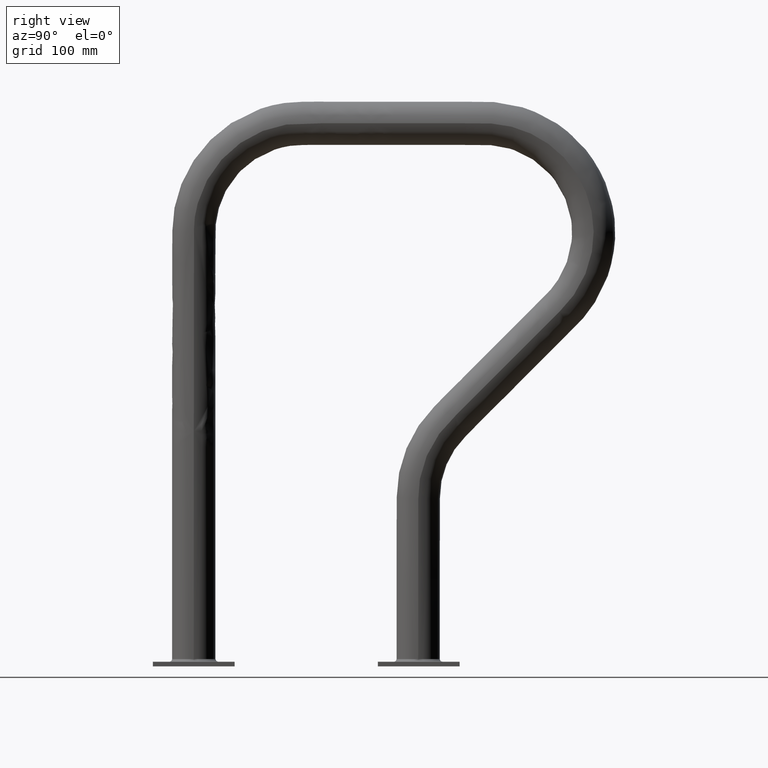
[diagram: clean part render]
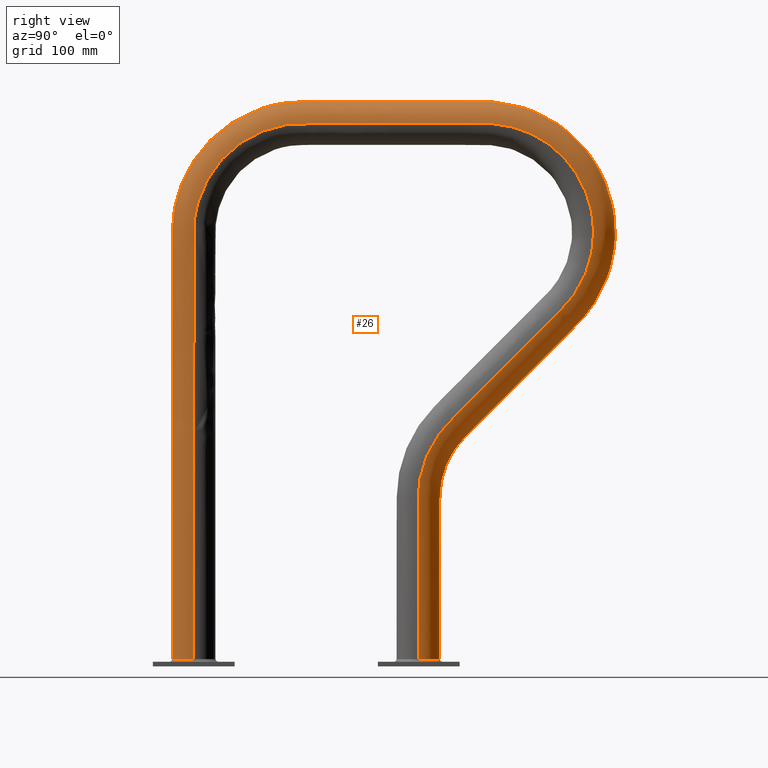
[diagram: same view with one face highlighted and labeled with its STEP entity id]
A machine part, right view. The second image highlights one B-rep face of the part: STEP entity #26.
In plain terms, the highlighted face is a freeform B-spline surface patch.
Its self-contained STEP definition (entity closure, byte-faithful):
#26=ADVANCED_FACE($,(#62),#346,.T.);
#62=FACE_OUTER_BOUND($,#98,.T.);
#98=EDGE_LOOP($,(#180,#181,#182,#183,#184));
#180=ORIENTED_EDGE($,*,*,#283,.T.);
#181=ORIENTED_EDGE($,*,*,#288,.F.);
#182=ORIENTED_EDGE($,*,*,#265,.F.);
#183=ORIENTED_EDGE($,*,*,#269,.F.);
#184=ORIENTED_EDGE($,*,*,#268,.T.);
#265=EDGE_CURVE($,#321,#335,#373,.T.);
#268=EDGE_CURVE($,#323,#332,#376,.T.);
#269=EDGE_CURVE($,#323,#321,#377,.T.);
#283=EDGE_CURVE($,#332,#333,#387,.T.);
#288=EDGE_CURVE($,#335,#333,#392,.T.);
#321=VERTEX_POINT($,#1702);
#323=VERTEX_POINT($,#1704);
#332=VERTEX_POINT($,#1713);
#333=VERTEX_POINT($,#1714);
#335=VERTEX_POINT($,#1716);
#346=(
BOUNDED_SURFACE()
B_SPLINE_SURFACE(3,2,((#911,#912,#913,#914,#915),(#916,#917,#918,#919,#920),
(#921,#922,#923,#924,#925),(#926,#927,#928,#929,#930),(#931,#932,#933,#934,
#935),(#936,#937,#938,#939,#940),(#941,#942,#943,#944,#945),(#946,#947,#948,
#949,#950),(#951,#952,#953,#954,#955),(#956,#957,#958,#959,#960),(#961,#962,
#963,#964,#965),(#966,#967,#968,#969,#970),(#971,#972,#973,#974,#975),(#976,
#977,#978,#979,#980),(#981,#982,#983,#984,#985),(#986,#987,#988,#989,#990),
(#991,#992,#993,#994,#995),(#996,#997,#998,#999,#1000),(#1001,#1002,#1003,
#1004,#1005),(#1006,#1007,#1008,#1009,#1010),(#1011,#1012,#1013,#1014,#1015),
(#1016,#1017,#1018,#1019,#1020),(#1021,#1022,#1023,#1024,#1025),(#1026,#1027,
#1028,#1029,#1030),(#1031,#1032,#1033,#1034,#1035),(#1036,#1037,#1038,#1039,
#1040),(#1041,#1042,#1043,#1044,#1045),(#1046,#1047,#1048,#1049,#1050),(#1051,
#1052,#1053,#1054,#1055),(#1056,#1057,#1058,#1059,#1060),(#1061,#1062,#1063,
#1064,#1065),(#1066,#1067,#1068,#1069,#1070),(#1071,#1072,#1073,#1074,#1075),
(#1076,#1077,#1078,#1079,#1080),(#1081,#1082,#1083,#1084,#1085),(#1086,#1087,
#1088,#1089,#1090),(#1091,#1092,#1093,#1094,#1095),(#1096,#1097,#1098,#1099,
#1100),(#1101,#1102,#1103,#1104,#1105),(#1106,#1107,#1108,#1109,#1110),(#1111,
#1112,#1113,#1114,#1115),(#1116,#1117,#1118,#1119,#1120),(#1121,#1122,#1123,
#1124,#1125),(#1126,#1127,#1128,#1129,#1130),(#1131,#1132,#1133,#1134,#1135),
(#1136,#1137,#1138,#1139,#1140),(#1141,#1142,#1143,#1144,#1145),(#1146,#1147,
#1148,#1149,#1150),(#1151,#1152,#1153,#1154,#1155),(#1156,#1157,#1158,#1159,
#1160),(#1161,#1162,#1163,#1164,#1165),(#1166,#1167,#1168,#1169,#1170),(#1171,
#1172,#1173,#1174,#1175),(#1176,#1177,#1178,#1179,#1180),(#1181,#1182,#1183,
#1184,#1185),(#1186,#1187,#1188,#1189,#1190),(#1191,#1192,#1193,#1194,#1195),
(#1196,#1197,#1198,#1199,#1200),(#1201,#1202,#1203,#1204,#1205),(#1206,#1207,
#1208,#1209,#1210),(#1211,#1212,#1213,#1214,#1215)),.UNSPECIFIED.,.F.,.F.,
.F.)
B_SPLINE_SURFACE_WITH_KNOTS((4,1,1,1,1,1,1,1,1,1,1,1,1,1,1,1,1,1,1,1,1,1,
1,1,1,1,1,1,1,1,1,1,1,1,1,1,1,1,1,1,1,1,1,1,1,1,1,1,1,1,1,1,1,1,1,1,1,1,
4),(3,2,3),(0.149996796353714,4.5,6.75,9.,9.5890476981201,10.1780953962402,
10.7671430943603,11.3561907924804,11.9452384906005,12.5342861887206,13.1233338868406,
13.7123815849607,15.8831062160747,18.0538308471886,20.2245554783025,21.3099177938595,
22.3952801094164,22.8370650137872,23.278849918158,23.7206348225287,24.1624197268995,
25.045989535641,25.9295593443826,26.8131291531241,27.6966989618656,29.4638385793487,
31.2309781968317,32.9981178143148,33.8816876230563,34.7652574317979,35.6488272405394,
36.0906121449101,36.5323970492809,37.7823970492809,39.0323970492809,41.5323970492809,
42.7823970492809,44.0323970492809,45.2823970492809,46.5323970492809,47.0978323011465,
47.3805499270793,47.6632675530121,47.9459851789449,48.2287028048777,48.5114204308105,
48.7941380567433,50.0194471609519,51.2447562651606,52.4700653693693,53.0827199214736,
53.695374473578,54.2608097254436,54.8262449773091,55.3916802291747,55.9571154810403,
61.8633654810403,67.7696154810403,79.5821154810403),(-3.73849525777185,-1.86924762888593,
0.),.UNSPECIFIED.)
GEOMETRIC_REPRESENTATION_ITEM()
RATIONAL_B_SPLINE_SURFACE(((1.,0.707106781186547,1.,0.707106781186547,1.),
(1.,0.707106781186547,1.,0.707106781186547,1.),(1.,0.707106781186547,1.,
0.707106781186547,1.),(1.,0.707106781186548,1.,0.707106781186548,1.),(1.,
0.707106781186548,1.,0.707106781186548,1.),(1.,0.707106781186547,1.,0.707106781186547,
1.),(1.,0.707106781186548,1.,0.707106781186548,1.),(1.,0.707106781186547,
1.,0.707106781186547,1.),(1.,0.707106781186548,1.,0.707106781186548,1.),
(1.,0.707106781186547,1.,0.707106781186547,1.),(1.,0.707106781186548,1.,
0.707106781186548,1.),(1.,0.707106781186548,1.,0.707106781186548,1.),(1.,
0.707106781186547,1.,0.707106781186547,1.),(1.,0.707106781186548,1.,0.707106781186548,
1.),(1.,0.707106781186547,1.,0.707106781186547,1.),(1.,0.707106781186548,
1.,0.707106781186548,1.),(1.,0.707106781186547,1.,0.707106781186547,1.),
(1.,0.707106781186548,1.,0.707106781186548,1.),(1.,0.707106781186547,1.,
0.707106781186547,1.),(1.,0.707106781186548,1.,0.707106781186548,1.),(1.,
0.707106781186547,1.,0.707106781186547,1.),(1.,0.707106781186547,1.,0.707106781186547,
1.),(1.,0.707106781186548,1.,0.707106781186548,1.),(1.,0.707106781186548,
1.,0.707106781186548,1.),(1.,0.707106781186547,1.,0.707106781186547,1.),
(1.,0.707106781186547,1.,0.707106781186547,1.),(1.,0.707106781186548,1.,
0.707106781186548,1.),(1.,0.707106781186547,1.,0.707106781186547,1.),(1.,
0.707106781186547,1.,0.707106781186547,1.),(1.,0.707106781186547,1.,0.707106781186547,
1.),(1.,0.707106781186548,1.,0.707106781186548,1.),(1.,0.707106781186548,
1.,0.707106781186548,1.),(1.,0.707106781186548,1.,0.707106781186548,1.),
(1.,0.707106781186547,1.,0.707106781186547,1.),(1.,0.707106781186547,1.,
0.707106781186547,1.),(1.,0.707106781186548,1.,0.707106781186548,1.),(1.,
0.707106781186547,1.,0.707106781186547,1.),(1.,0.707106781186547,1.,0.707106781186547,
1.),(1.,0.707106781186548,1.,0.707106781186548,1.),(1.,0.707106781186547,
1.,0.707106781186547,1.),(1.,0.707106781186548,1.,0.707106781186548,1.),
(1.,0.707106781186548,1.,0.707106781186548,1.),(1.,0.707106781186548,1.,
0.707106781186548,1.),(1.,0.707106781186548,1.,0.707106781186548,1.),(1.,
0.707106781186548,1.,0.707106781186548,1.),(1.,0.707106781186548,1.,0.707106781186548,
1.),(1.,0.707106781186547,1.,0.707106781186547,1.),(1.,0.707106781186548,
1.,0.707106781186548,1.),(1.,0.707106781186548,1.,0.707106781186548,1.),
(1.,0.707106781186548,1.,0.707106781186548,1.),(0.999999999999999,0.707106781186547,
0.999999999999999,0.707106781186547,0.999999999999999),(1.,0.707106781186548,
1.,0.707106781186548,1.),(1.,0.707106781186547,1.,0.707106781186547,1.),
(1.,0.707106781186547,1.,0.707106781186547,1.),(1.,0.707106781186548,1.,
0.707106781186548,1.),(1.,0.707106781186548,1.,0.707106781186548,1.),(1.,
0.707106781186547,1.,0.707106781186547,1.),(1.,0.707106781186548,1.,0.707106781186548,
1.),(1.,0.707106781186547,1.,0.707106781186547,1.),(1.,0.707106781186548,
1.,0.707106781186548,1.),(1.,0.707106781186547,1.,0.707106781186547,1.)))
REPRESENTATION_ITEM($)
SURFACE()
);
#373=(
BOUNDED_CURVE()
B_SPLINE_CURVE(3,(#612,#613,#614,#615,#616,#617,#618),.UNSPECIFIED.,.F.,
.F.)
B_SPLINE_CURVE_WITH_KNOTS((4,1,1,1,4),(-9.68063434933509E-06,0.983040870456831,
2.01477237132182,3.08782355078826,4.16456724176145),.UNSPECIFIED.)
CURVE()
GEOMETRIC_REPRESENTATION_ITEM()
RATIONAL_B_SPLINE_CURVE((1.,1.,1.,1.,1.,1.,1.))
REPRESENTATION_ITEM($)
);
#376=(
BOUNDED_CURVE()
B_SPLINE_CURVE(3,(#629,#630,#631,#632,#633,#634,#635),.UNSPECIFIED.,.F.,
.F.)
B_SPLINE_CURVE_WITH_KNOTS((4,1,1,1,4),(1.97151300374481E-05,1.0183585563259,
2.10088135256661,3.11924612173618,4.20192811010861),.UNSPECIFIED.)
CURVE()
GEOMETRIC_REPRESENTATION_ITEM()
RATIONAL_B_SPLINE_CURVE((1.,1.,1.,1.,1.,1.,1.))
REPRESENTATION_ITEM($)
);
#377=(
BOUNDED_CURVE()
B_SPLINE_CURVE(3,(#636,#637,#638,#639,#640,#641,#642,#643,#644,#645,#646,
#647,#648,#649,#650,#651,#652,#653,#654,#655,#656,#657,#658,#659,#660,#661,
#662,#663,#664,#665,#666,#667,#668,#669,#670,#671,#672,#673,#674,#675,#676,
#677,#678,#679,#680,#681,#682,#683,#684,#685,#686,#687,#688,#689,#690,#691,
#692,#693,#694,#695,#696),.UNSPECIFIED.,.F.,.F.)
B_SPLINE_CURVE_WITH_KNOTS((4,1,1,1,1,1,1,1,1,1,1,1,1,1,1,1,1,1,1,1,1,1,1,
1,1,1,1,1,1,1,1,1,1,1,1,1,1,1,1,1,1,1,1,1,1,1,1,1,1,1,1,1,1,1,1,1,1,1,4),
(0.14999768131915,4.5,6.75,9.,9.5890476981201,10.1780953962402,10.7671430943603,
11.3561907924804,11.9452384906005,12.5342861887206,13.1233338868406,13.7123815849607,
15.8831062160747,18.0538308471886,20.2245554783025,21.3099177938595,22.3952801094164,
22.8370650137872,23.278849918158,23.7206348225287,24.1624197268995,25.045989535641,
25.9295593443826,26.8131291531241,27.6966989618656,29.4638385793487,31.2309781968317,
32.9981178143148,33.8816876230563,34.7652574317979,35.6488272405394,36.0906121449101,
36.5323970492809,37.7823970492809,39.0323970492809,41.5323970492809,42.7823970492809,
44.0323970492809,45.2823970492809,46.5323970492809,47.0978323011465,47.3805499270793,
47.6632675530121,47.9459851789449,48.2287028048777,48.5114204308105,48.7941380567433,
50.0194471609519,51.2447562651606,52.4700653693693,53.0827199214736,53.695374473578,
54.2608097254436,54.8262449773091,55.3916802291747,55.9571154810403,61.8633654810403,
67.7696154810403,79.4321148967266),.UNSPECIFIED.)
CURVE()
GEOMETRIC_REPRESENTATION_ITEM()
RATIONAL_B_SPLINE_CURVE((1.,1.,1.,1.,1.,1.,1.,1.,1.,1.,1.,1.,1.,1.,1.,1.,
1.,1.,1.,1.,1.,1.,1.,1.,1.,1.,1.,1.,1.,1.,1.,1.,1.,1.,1.,1.,1.,1.,1.,1.,
1.,1.,1.,1.,1.,1.,1.,1.,1.,1.,0.999999999999999,1.,1.,1.,1.,1.,1.,1.,1.,
1.,1.))
REPRESENTATION_ITEM($)
);
#387=(
BOUNDED_CURVE()
B_SPLINE_CURVE(3,(#748,#749,#750,#751,#752,#753,#754,#755,#756,#757,#758,
#759,#760,#761,#762,#763,#764,#765,#766,#767,#768,#769,#770,#771,#772,#773,
#774,#775,#776,#777,#778,#779,#780,#781,#782,#783,#784,#785,#786,#787,#788,
#789,#790,#791,#792,#793,#794,#795,#796,#797,#798,#799,#800,#801,#802,#803,
#804,#805,#806,#807,#808),.UNSPECIFIED.,.F.,.F.)
B_SPLINE_CURVE_WITH_KNOTS((4,1,1,1,1,1,1,1,1,1,1,1,1,1,1,1,1,1,1,1,1,1,1,
1,1,1,1,1,1,1,1,1,1,1,1,1,1,1,1,1,1,1,1,1,1,1,1,1,1,1,1,1,1,1,1,1,1,1,4),
(0.149996796353714,4.5,6.75,9.,9.5890476981201,10.1780953962402,10.7671430943603,
11.3561907924804,11.9452384906005,12.5342861887206,13.1233338868406,13.7123815849607,
15.8831062160747,18.0538308471886,20.2245554783025,21.3099177938595,22.3952801094164,
22.8370650137872,23.278849918158,23.7206348225287,24.1624197268995,25.045989535641,
25.9295593443826,26.8131291531241,27.6966989618656,29.4638385793487,31.2309781968317,
32.9981178143148,33.8816876230563,34.7652574317979,35.6488272405394,36.0906121449101,
36.5323970492809,37.7823970492809,39.0323970492809,41.5323970492809,42.7823970492809,
44.0323970492809,45.2823970492809,46.5323970492809,47.0978323011465,47.3805499270793,
47.6632675530121,47.9459851789449,48.2287028048777,48.5114204308105,48.7941380567433,
50.0194471609519,51.2447562651606,52.4700653693693,53.0827199214736,53.695374473578,
54.2608097254436,54.8262449773091,55.3916802291747,55.9571154810403,61.8633654810403,
67.7696154810403,79.4321153808704),.UNSPECIFIED.)
CURVE()
GEOMETRIC_REPRESENTATION_ITEM()
RATIONAL_B_SPLINE_CURVE((1.,1.,1.,1.,1.,1.,1.,1.,1.,1.,1.,1.,1.,1.,1.,1.,
1.,1.,1.,1.,1.,1.,1.,1.,1.,1.,1.,1.,1.,1.,1.,1.,1.,1.,1.,1.,1.,1.,1.,1.,
1.,1.,1.,1.,1.,1.,1.,1.,1.,1.,0.999999999999999,1.,1.,1.,1.,1.,1.,1.,1.,
1.,1.))
REPRESENTATION_ITEM($)
);
#392=(
BOUNDED_CURVE()
B_SPLINE_CURVE(3,(#830,#831,#832,#833),.UNSPECIFIED.,.F.,.F.)
B_SPLINE_CURVE_WITH_KNOTS((4,4),(4.16456724176145,4.20973543654917),.UNSPECIFIED.)
CURVE()
GEOMETRIC_REPRESENTATION_ITEM()
RATIONAL_B_SPLINE_CURVE((1.,1.,1.,1.))
REPRESENTATION_ITEM($)
);
#612=CARTESIAN_POINT($,(1.18999997338845,-4.99999031936882,0.399999946810388));
#613=CARTESIAN_POINT($,(1.19104392157763,-5.29079924427484,0.399997732415383));
#614=CARTESIAN_POINT($,(0.961612284910856,-5.8862589332365,0.399992338144895));
#615=CARTESIAN_POINT($,(0.0766388629384522,-6.31760385727528,0.399987551697112));
#616=CARTESIAN_POINT($,(-0.888501210465236,-5.98373725155703,0.399991330575426));
#617=CARTESIAN_POINT($,(-1.17938017084338,-5.35807810489531,0.399997177006046));
#618=CARTESIAN_POINT($,(-1.19010822719629,-5.0400315504556,0.399999653318547));
#629=CARTESIAN_POINT($,(1.18750002661052,7.34554686119319,0.40000005318768));
#630=CARTESIAN_POINT($,(1.18894214174594,7.64620166822011,0.400004339893745));
#631=CARTESIAN_POINT($,(0.93910845713836,8.26825578144411,0.40001141299655));
#632=CARTESIAN_POINT($,(0.0200470343607435,8.66229006668995,0.400014416770548));
#633=CARTESIAN_POINT($,(-0.923043847962278,8.28500863048714,0.400011562769723));
#634=CARTESIAN_POINT($,(-1.18793294093725,7.66535160724076,0.400004575018566));
#635=CARTESIAN_POINT($,(-1.18830401951042,7.34554779398043,0.400000082264978));
#636=CARTESIAN_POINT($,(1.18750002661052,7.34554686119319,0.40000005318768));
#637=CARTESIAN_POINT($,(1.18750054076513,7.34570832758117,1.85001990622462));
#638=CARTESIAN_POINT($,(1.18751261108159,7.34471099487654,4.04988410585989));
#639=CARTESIAN_POINT($,(1.18754924544854,7.34771774543352,7.00003845710319));
#640=CARTESIAN_POINT($,(1.18757781774712,7.3395373368351,8.69626767759837));
#641=CARTESIAN_POINT($,(1.18760003753637,7.36104371918334,9.83902142103311));
#642=CARTESIAN_POINT($,(1.18761211532942,7.45236133314234,10.4223924555415));
#643=CARTESIAN_POINT($,(1.18762480470855,7.59438817219515,10.9945821341949));
#644=CARTESIAN_POINT($,(1.18763809350837,7.79345210585914,11.5497098113778));
#645=CARTESIAN_POINT($,(1.18765196956348,8.04524952786369,12.0830528252714));
#646=CARTESIAN_POINT($,(1.1876664207085,8.34938739198049,12.5880625377117));
#647=CARTESIAN_POINT($,(1.18768143477802,8.69734339464227,13.0650542851024));
#648=CARTESIAN_POINT($,(1.18771093086696,9.47153006225236,13.8697685737013));
#649=CARTESIAN_POINT($,(1.18775787846256,10.6393826834234,15.0257824515045));
#650=CARTESIAN_POINT($,(1.18782659202484,12.1723605289759,16.5631971063832));
#651=CARTESIAN_POINT($,(1.18788893383518,13.4521727059886,17.8412058704929));
#652=CARTESIAN_POINT($,(1.18794155117844,14.4744163431139,18.8656404433521));
#653=CARTESIAN_POINT($,(1.18797425389565,15.0931442698116,19.4784607395818));
#654=CARTESIAN_POINT($,(1.18799941937212,15.5486335311843,19.9513134465603));
#655=CARTESIAN_POINT($,(1.18801655606,15.8232232927506,20.297813390522));
#656=CARTESIAN_POINT($,(1.18803388457132,16.0738437078251,20.6621222206536));
#657=CARTESIAN_POINT($,(1.18805723817472,16.3705592083273,21.1715304340619));
#658=CARTESIAN_POINT($,(1.18808688407635,16.6696774212637,21.8462066871592));
#659=CARTESIAN_POINT($,(1.1881231443362,16.9060424130784,22.7002675496236));
#660=CARTESIAN_POINT($,(1.18816004871597,17.0144295067279,23.5795041281065));
#661=CARTESIAN_POINT($,(1.18821005863828,16.985695551388,24.7606211391669));
#662=CARTESIAN_POINT($,(1.18827397605113,16.6240149809328,26.2044846154386));
#663=CARTESIAN_POINT($,(1.18835259649879,15.7055715811961,27.736816659476));
#664=CARTESIAN_POINT($,(1.18841943944562,14.6026632893214,28.7364685394192));
#665=CARTESIAN_POINT($,(1.18847354511549,13.574540160616,29.3185175345303));
#666=CARTESIAN_POINT($,(1.18851439896612,12.7481338960121,29.6375902624344));
#667=CARTESIAN_POINT($,(1.18854863845854,12.0276528859738,29.7986458772621));
#668=CARTESIAN_POINT($,(1.18857612629364,11.4418360721463,29.8658597803028));
#669=CARTESIAN_POINT($,(1.18860938314892,10.730703637133,29.8782322107936));
#670=CARTESIAN_POINT($,(1.18865539888104,9.74984510423498,29.8738929234498));
#671=CARTESIAN_POINT($,(1.18873385852715,8.08336289204637,29.875374273069));
#672=CARTESIAN_POINT($,(1.18881245928802,6.41670615321504,29.8749116005803));
#673=CARTESIAN_POINT($,(1.18889073615092,4.75005208670264,29.8749227428603));
#674=CARTESIAN_POINT($,(1.18894916559591,3.49999875133177,29.8753946424087));
#675=CARTESIAN_POINT($,(1.18900720058554,2.25000354676509,29.8734986875048));
#676=CARTESIAN_POINT($,(1.18905422377464,1.22826480712053,29.8793123223));
#677=CARTESIAN_POINT($,(1.18908615430312,0.528765083750568,29.8640053564864));
#678=CARTESIAN_POINT($,(1.18910329481787,0.154464340720613,29.8169249146227));
#679=CARTESIAN_POINT($,(1.18911611409676,-0.124640894541615,29.7710378377547));
#680=CARTESIAN_POINT($,(1.18912889592347,-0.401148905886091,29.7113561660349));
#681=CARTESIAN_POINT($,(1.18914163895294,-0.674464339285013,29.6389343948676));
#682=CARTESIAN_POINT($,(1.18915434184016,-0.944118163554715,29.5536402899793));
#683=CARTESIAN_POINT($,(1.18918107443878,-1.5042260039333,29.3470922449522));
#684=CARTESIAN_POINT($,(1.18922151009293,-2.3169886369094,28.9248971817326));
#685=CARTESIAN_POINT($,(1.18927497593431,-3.27222251433781,28.1472496188826));
#686=CARTESIAN_POINT($,(1.18931867783824,-3.92024628919738,27.3512606441674));
#687=CARTESIAN_POINT($,(1.18935307283336,-4.33384926382493,26.6454693547667));
#688=CARTESIAN_POINT($,(1.18937791702343,-4.58179722698739,26.1017703649988));
#689=CARTESIAN_POINT($,(1.18940182278699,-4.77069226280928,25.5511874862511));
#690=CARTESIAN_POINT($,(1.18942480575832,-4.90119292651665,25.0010301728267));
#691=CARTESIAN_POINT($,(1.18944750260886,-4.98686892631041,24.4404617718269));
#692=CARTESIAN_POINT($,(1.18954042883036,-5.00633578118098,22.0947652550622));
#693=CARTESIAN_POINT($,(1.18969103455355,-4.99742463195944,17.968794642721));
#694=CARTESIAN_POINT($,(1.18991594311466,-5.00099659239819,10.1438808614838));
#695=CARTESIAN_POINT($,(1.18999859489637,-4.99975324913284,4.28748468494972));
#696=CARTESIAN_POINT($,(1.18999997338845,-4.99999031936882,0.399999946810388));
#748=CARTESIAN_POINT($,(-1.1875000266102,7.34554686109464,0.399999168210603));
#749=CARTESIAN_POINT($,(-1.1875005407619,7.34570832784863,1.85001931628429));
#750=CARTESIAN_POINT($,(-1.18751261107792,7.34471099457588,4.04988381085606));
#751=CARTESIAN_POINT($,(-1.18754924544854,7.34771774543352,7.00003845710319));
#752=CARTESIAN_POINT($,(-1.18757781774712,7.3395373368351,8.69626767759837));
#753=CARTESIAN_POINT($,(-1.18760003753637,7.36104371918334,9.83902142103312));
#754=CARTESIAN_POINT($,(-1.18761211532942,7.45236133314234,10.4223924555415));
#755=CARTESIAN_POINT($,(-1.18762480470855,7.59438817219515,10.9945821341949));
#756=CARTESIAN_POINT($,(-1.18763809350836,7.79345210585914,11.5497098113778));
#757=CARTESIAN_POINT($,(-1.18765196956349,8.04524952786369,12.0830528252714));
#758=CARTESIAN_POINT($,(-1.1876664207085,8.34938739198049,12.5880625377117));
#759=CARTESIAN_POINT($,(-1.18768143477802,8.69734339464227,13.0650542851024));
#760=CARTESIAN_POINT($,(-1.18771093086696,9.47153006225233,13.8697685737013));
#761=CARTESIAN_POINT($,(-1.18775787846255,10.6393826834234,15.0257824515045));
#762=CARTESIAN_POINT($,(-1.18782659202485,12.1723605289759,16.5631971063832));
#763=CARTESIAN_POINT($,(-1.18788893383518,13.4521727059886,17.8412058704929));
#764=CARTESIAN_POINT($,(-1.18794155117843,14.4744163431139,18.8656404433521));
#765=CARTESIAN_POINT($,(-1.18797425389565,15.0931442698116,19.4784607395818));
#766=CARTESIAN_POINT($,(-1.18799941937212,15.5486335311843,19.9513134465603));
#767=CARTESIAN_POINT($,(-1.18801655605999,15.8232232927506,20.297813390522));
#768=CARTESIAN_POINT($,(-1.18803388457133,16.073843707825,20.6621222206536));
#769=CARTESIAN_POINT($,(-1.18805723817471,16.3705592083273,21.171530434062));
#770=CARTESIAN_POINT($,(-1.18808688407635,16.6696774212636,21.8462066871592));
#771=CARTESIAN_POINT($,(-1.18812314433619,16.9060424130784,22.7002675496236));
#772=CARTESIAN_POINT($,(-1.18816004871597,17.0144295067279,23.5795041281065));
#773=CARTESIAN_POINT($,(-1.18821005863828,16.985695551388,24.7606211391669));
#774=CARTESIAN_POINT($,(-1.18827397605112,16.6240149809328,26.2044846154387));
#775=CARTESIAN_POINT($,(-1.1883525964988,15.7055715811961,27.7368166594761));
#776=CARTESIAN_POINT($,(-1.18841943944562,14.6026632893214,28.7364685394192));
#777=CARTESIAN_POINT($,(-1.18847354511548,13.574540160616,29.3185175345303));
#778=CARTESIAN_POINT($,(-1.18851439896612,12.7481338960121,29.6375902624344));
#779=CARTESIAN_POINT($,(-1.18854863845853,12.0276528859738,29.7986458772621));
#780=CARTESIAN_POINT($,(-1.18857612629363,11.4418360721463,29.8658597803028));
#781=CARTESIAN_POINT($,(-1.18860938314892,10.730703637133,29.8782322107936));
#782=CARTESIAN_POINT($,(-1.18865539888103,9.74984510423498,29.8738929234498));
#783=CARTESIAN_POINT($,(-1.18873385852716,8.08336289204637,29.875374273069));
#784=CARTESIAN_POINT($,(-1.18881245928802,6.41670615321504,29.8749116005803));
#785=CARTESIAN_POINT($,(-1.18889073615092,4.75005208670264,29.8749227428602));
#786=CARTESIAN_POINT($,(-1.18894916559591,3.49999875133176,29.8753946424087));
#787=CARTESIAN_POINT($,(-1.18900720058554,2.25000354676509,29.8734986875048));
#788=CARTESIAN_POINT($,(-1.18905422377462,1.22826480712053,29.8793123223));
#789=CARTESIAN_POINT($,(-1.18908615430312,0.528765083750568,29.8640053564864));
#790=CARTESIAN_POINT($,(-1.18910329481786,0.154464340720613,29.8169249146227));
#791=CARTESIAN_POINT($,(-1.18911611409675,-0.124640894541615,29.7710378377547));
#792=CARTESIAN_POINT($,(-1.18912889592346,-0.401148905886091,29.7113561660349));
#793=CARTESIAN_POINT($,(-1.18914163895294,-0.674464339285013,29.6389343948676));
#794=CARTESIAN_POINT($,(-1.18915434184016,-0.944118163554715,29.5536402899793));
#795=CARTESIAN_POINT($,(-1.18918107443877,-1.5042260039333,29.3470922449522));
#796=CARTESIAN_POINT($,(-1.18922151009293,-2.31698863690941,28.9248971817326));
#797=CARTESIAN_POINT($,(-1.1892749759343,-3.27222251433781,28.1472496188826));
#798=CARTESIAN_POINT($,(-1.18931867783825,-3.92024628919739,27.3512606441674));
#799=CARTESIAN_POINT($,(-1.18935307283336,-4.33384926382494,26.6454693547667));
#800=CARTESIAN_POINT($,(-1.18937791702343,-4.58179722698739,26.1017703649988));
#801=CARTESIAN_POINT($,(-1.18940182278698,-4.77069226280929,25.5511874862511));
#802=CARTESIAN_POINT($,(-1.18942480575831,-4.90119292651666,25.0010301728267));
#803=CARTESIAN_POINT($,(-1.18944750260884,-4.98686892631042,24.4404617718269));
#804=CARTESIAN_POINT($,(-1.18954042883036,-5.00633578118099,22.0947652550622));
#805=CARTESIAN_POINT($,(-1.18969103455355,-4.99742463195945,17.968794642721));
#806=CARTESIAN_POINT($,(-1.18991594311929,-5.00099659247187,10.1438807001044));
#807=CARTESIAN_POINT($,(-1.18999859490092,-4.99975324906432,4.28748436217916));
#808=CARTESIAN_POINT($,(-1.18999997338862,-4.99999031939835,0.399999462668524));
#830=CARTESIAN_POINT($,(-1.19010822719629,-5.0400315504556,0.399999653318547));
#831=CARTESIAN_POINT($,(-1.19055825717381,-5.02668985285112,0.39999975719709));
#832=CARTESIAN_POINT($,(-1.19077079468865,-5.01333992040519,0.399999860280378));
#833=CARTESIAN_POINT($,(-1.19074860920252,-4.99998907537235,0.399999962547309));
#911=CARTESIAN_POINT($,(-1.1875000266102,7.34554686109464,0.399999168210603));
#912=CARTESIAN_POINT($,(-1.1875000266102,8.53304298322622,0.399861564419851));
#913=CARTESIAN_POINT($,(1.81019932072123E-16,8.53304298322622,0.399861564419851));
#914=CARTESIAN_POINT($,(1.1875000266102,8.53304298322622,0.399861564419851));
#915=CARTESIAN_POINT($,(1.18750002661021,7.34554686109464,0.399999168210603));
#916=CARTESIAN_POINT($,(-1.1875005407619,7.34570832784863,1.85001931628429));
#917=CARTESIAN_POINT($,(-1.1875005407619,8.53317298633399,1.84875473328953));
#918=CARTESIAN_POINT($,(1.83096514196645E-15,8.53317298633398,1.84875473328953));
#919=CARTESIAN_POINT($,(1.1875005407619,8.53317298633399,1.84875473328953));
#920=CARTESIAN_POINT($,(1.1875005407619,7.34570832784863,1.85001931628429));
#921=CARTESIAN_POINT($,(-1.18751261107792,7.34471099457588,4.04988381085606));
#922=CARTESIAN_POINT($,(-1.18751261107793,8.53238524095336,4.05558025129208));
#923=CARTESIAN_POINT($,(0.,8.53238524095336,4.05558025129208));
#924=CARTESIAN_POINT($,(1.18751261107793,8.53238524095336,4.05558025129208));
#925=CARTESIAN_POINT($,(1.18751261107792,7.34471099457588,4.04988381085606));
#926=CARTESIAN_POINT($,(-1.18754924544854,7.34771774543352,7.00003845710319));
#927=CARTESIAN_POINT($,(-1.18754924544852,8.53483315207318,6.9847488703586));
#928=CARTESIAN_POINT($,(0.,8.53483315207319,6.98474887035861));
#929=CARTESIAN_POINT($,(1.18754924544853,8.53483315207318,6.9847488703586));
#930=CARTESIAN_POINT($,(1.18754924544854,7.34771774543352,7.00003845710319));
#931=CARTESIAN_POINT($,(-1.18757781774712,7.3395373368351,8.69626767759837));
#932=CARTESIAN_POINT($,(-1.18757781774712,8.52830141060239,8.73807436697461));
#933=CARTESIAN_POINT($,(8.46545056276681E-15,8.52830141060238,8.7380743669746));
#934=CARTESIAN_POINT($,(1.18757781774712,8.52830141060239,8.73807436697461));
#935=CARTESIAN_POINT($,(1.18757781774712,7.3395373368351,8.69626767759837));
#936=CARTESIAN_POINT($,(-1.18760003753637,7.36104371918334,9.83902142103312));
#937=CARTESIAN_POINT($,(-1.18760003753637,8.54557076597801,9.73072138528142));
#938=CARTESIAN_POINT($,(0.,8.54557076597801,9.73072138528142));
#939=CARTESIAN_POINT($,(1.18760003753637,8.54557076597801,9.73072138528142));
#940=CARTESIAN_POINT($,(1.18760003753637,7.36104371918334,9.83902142103312));
#941=CARTESIAN_POINT($,(-1.18761211532942,7.45236133314234,10.4223924555415));
#942=CARTESIAN_POINT($,(-1.18761211532941,8.61883487028468,10.1881216908606));
#943=CARTESIAN_POINT($,(0.,8.61883487028469,10.1881216908606));
#944=CARTESIAN_POINT($,(1.18761211532941,8.61883487028468,10.1881216908606));
#945=CARTESIAN_POINT($,(1.18761211532942,7.45236133314234,10.4223924555415));
#946=CARTESIAN_POINT($,(-1.18762480470855,7.59438817219515,10.9945821341949));
#947=CARTESIAN_POINT($,(-1.18762480470854,8.73272554538182,10.6498308108482));
#948=CARTESIAN_POINT($,(0.,8.73272554538182,10.6498308108482));
#949=CARTESIAN_POINT($,(1.18762480470854,8.73272554538182,10.6498308108482));
#950=CARTESIAN_POINT($,(1.18762480470855,7.59438817219515,10.9945821341949));
#951=CARTESIAN_POINT($,(-1.18763809350836,7.79345210585914,11.5497098113778));
#952=CARTESIAN_POINT($,(-1.18763809350836,8.89253517220528,11.0944538883792));
#953=CARTESIAN_POINT($,(-1.91513471747839E-15,8.89253517220527,11.0944538883792));
#954=CARTESIAN_POINT($,(1.18763809350837,8.89253517220528,11.0944538883792));
#955=CARTESIAN_POINT($,(1.18763809350837,7.79345210585914,11.5497098113778));
#956=CARTESIAN_POINT($,(-1.18765196956349,8.04524952786369,12.0830528252714));
#957=CARTESIAN_POINT($,(-1.18765196956347,9.09399819767628,11.5219166892038));
#958=CARTESIAN_POINT($,(1.9151347174784E-15,9.0939981976763,11.5219166892038));
#959=CARTESIAN_POINT($,(1.18765196956348,9.09399819767628,11.5219166892038));
#960=CARTESIAN_POINT($,(1.18765196956348,8.04524952786369,12.0830528252714));
#961=CARTESIAN_POINT($,(-1.1876664207085,8.34938739198049,12.5880625377117));
#962=CARTESIAN_POINT($,(-1.1876664207085,9.33983493452394,11.9287903162915));
#963=CARTESIAN_POINT($,(0.,9.33983493452394,11.9287903162915));
#964=CARTESIAN_POINT($,(1.1876664207085,9.33983493452394,11.9287903162915));
#965=CARTESIAN_POINT($,(1.1876664207085,8.34938739198049,12.5880625377117));
#966=CARTESIAN_POINT($,(-1.18768143477802,8.69734339464227,13.0650542851024));
#967=CARTESIAN_POINT($,(-1.18768143477802,9.61187888650114,12.3043202072218));
#968=CARTESIAN_POINT($,(-3.83026943495679E-15,9.61187888650112,12.3043202072218));
#969=CARTESIAN_POINT($,(1.18768143477803,9.61187888650114,12.3043202072218));
#970=CARTESIAN_POINT($,(1.18768143477802,8.69734339464227,13.0650542851024));
#971=CARTESIAN_POINT($,(-1.18771093086696,9.47153006225233,13.8697685737013));
#972=CARTESIAN_POINT($,(-1.18771093086696,10.2826835700618,12.9995686734918));
#973=CARTESIAN_POINT($,(-6.14785999886181E-15,10.2826835700618,12.9995686734918));
#974=CARTESIAN_POINT($,(1.18771093086696,10.2826835700618,12.9995686734918));
#975=CARTESIAN_POINT($,(1.18771093086696,9.47153006225233,13.8697685737013));
#976=CARTESIAN_POINT($,(-1.18775787846255,10.6393826834234,15.0257824515045));
#977=CARTESIAN_POINT($,(-1.18775787846255,11.4902174062976,14.1975177450928));
#978=CARTESIAN_POINT($,(-3.83026943495679E-15,11.4902174062977,14.1975177450928));
#979=CARTESIAN_POINT($,(1.18775787846256,11.4902174062976,14.1975177450928));
#980=CARTESIAN_POINT($,(1.18775787846256,10.6393826834234,15.0257824515045));
#981=CARTESIAN_POINT($,(-1.18782659202485,12.1723605289759,16.5631971063832));
#982=CARTESIAN_POINT($,(-1.18782659202484,13.0098176828219,15.7206591635672));
#983=CARTESIAN_POINT($,(1.9151347174784E-15,13.0098176828218,15.7206591635671));
#984=CARTESIAN_POINT($,(1.18782659202484,13.0098176828219,15.7206591635672));
#985=CARTESIAN_POINT($,(1.18782659202484,12.1723605289759,16.5631971063832));
#986=CARTESIAN_POINT($,(-1.18788893383518,13.4521727059886,17.8412058704929));
#987=CARTESIAN_POINT($,(-1.18788893383518,14.2907887232309,16.99984631907));
#988=CARTESIAN_POINT($,(0.,14.2907887232309,16.99984631907));
#989=CARTESIAN_POINT($,(1.18788893383517,14.2907887232309,16.99984631907));
#990=CARTESIAN_POINT($,(1.18788893383518,13.4521727059886,17.8412058704929));
#991=CARTESIAN_POINT($,(-1.18794155117843,14.4744163431139,18.8656404433521));
#992=CARTESIAN_POINT($,(-1.18794155117844,15.3208793144951,18.032379151093));
#993=CARTESIAN_POINT($,(-3.83026943495679E-15,15.3208793144951,18.032379151093));
#994=CARTESIAN_POINT($,(1.18794155117844,15.3208793144951,18.032379151093));
#995=CARTESIAN_POINT($,(1.18794155117844,14.4744163431139,18.8656404433521));
#996=CARTESIAN_POINT($,(-1.18797425389565,15.0931442698116,19.4784607395818));
#997=CARTESIAN_POINT($,(-1.18797425389564,15.9132123322298,18.6176121795684));
#998=CARTESIAN_POINT($,(0.,15.9132123322298,18.6176121795684));
#999=CARTESIAN_POINT($,(1.18797425389564,15.9132123322298,18.6176121795684));
#1000=CARTESIAN_POINT($,(1.18797425389565,15.0931442698116,19.4784607395818));
#1001=CARTESIAN_POINT($,(-1.18799941937212,15.5486335311843,19.9513134465603));
#1002=CARTESIAN_POINT($,(-1.18799941937212,16.4476634098331,19.172824019952));
#1003=CARTESIAN_POINT($,(1.9151347174784E-15,16.4476634098331,19.172824019952));
#1004=CARTESIAN_POINT($,(1.18799941937212,16.4476634098331,19.172824019952));
#1005=CARTESIAN_POINT($,(1.18799941937212,15.5486335311843,19.9513134465603));
#1006=CARTESIAN_POINT($,(-1.18801655605999,15.8232232927506,20.297813390522));
#1007=CARTESIAN_POINT($,(-1.18801655606,16.7786608531752,19.5899467089085));
#1008=CARTESIAN_POINT($,(-1.91513471747839E-15,16.7786608531752,19.5899467089085));
#1009=CARTESIAN_POINT($,(1.18801655606,16.7786608531752,19.5899467089085));
#1010=CARTESIAN_POINT($,(1.18801655606,15.8232232927506,20.297813390522));
#1011=CARTESIAN_POINT($,(-1.18803388457133,16.073843707825,20.6621222206536));
#1012=CARTESIAN_POINT($,(-1.18803388457133,17.0783868701683,20.0258475518725));
#1013=CARTESIAN_POINT($,(-6.14785999886181E-15,17.0783868701683,20.0258475518725));
#1014=CARTESIAN_POINT($,(1.18803388457133,17.0783868701683,20.0258475518725));
#1015=CARTESIAN_POINT($,(1.18803388457133,16.073843707825,20.6621222206536));
#1016=CARTESIAN_POINT($,(-1.18805723817471,16.3705592083273,21.171530434062));
#1017=CARTESIAN_POINT($,(-1.18805723817471,17.4340147527251,20.6362508697389));
#1018=CARTESIAN_POINT($,(-1.91513471747839E-15,17.4340147527251,20.6362508697389));
#1019=CARTESIAN_POINT($,(1.18805723817471,17.4340147527251,20.6362508697389));
#1020=CARTESIAN_POINT($,(1.18805723817472,16.3705592083273,21.171530434062));
#1021=CARTESIAN_POINT($,(-1.18808688407635,16.6696774212636,21.8462066871592));
#1022=CARTESIAN_POINT($,(-1.18808688407634,17.7923434732883,21.4444629915499));
#1023=CARTESIAN_POINT($,(-6.14785999886181E-15,17.7923434732884,21.4444629915499));
#1024=CARTESIAN_POINT($,(1.18808688407635,17.7923434732883,21.4444629915499));
#1025=CARTESIAN_POINT($,(1.18808688407635,16.6696774212636,21.8462066871592));
#1026=CARTESIAN_POINT($,(-1.18812314433619,16.9060424130784,22.7002675496236));
#1027=CARTESIAN_POINT($,(-1.1881231443362,18.0755627943669,22.4676477304925));
#1028=CARTESIAN_POINT($,(-3.83026943495679E-15,18.0755627943669,22.4676477304925));
#1029=CARTESIAN_POINT($,(1.1881231443362,18.0755627943669,22.4676477304925));
#1030=CARTESIAN_POINT($,(1.1881231443362,16.9060424130784,22.7002675496236));
#1031=CARTESIAN_POINT($,(-1.18816004871597,17.0144295067279,23.5795041281065));
#1032=CARTESIAN_POINT($,(-1.18816004871597,18.20544599324,23.5209854703636));
#1033=CARTESIAN_POINT($,(0.,18.20544599324,23.5209854703636));
#1034=CARTESIAN_POINT($,(1.18816004871598,18.20544599324,23.5209854703636));
#1035=CARTESIAN_POINT($,(1.18816004871597,17.0144295067279,23.5795041281065));
#1036=CARTESIAN_POINT($,(-1.18821005863828,16.985695551388,24.7606211391669));
#1037=CARTESIAN_POINT($,(-1.18821005863827,18.1710740928764,24.9360010126234));
#1038=CARTESIAN_POINT($,(0.,18.1710740928764,24.9360010126234));
#1039=CARTESIAN_POINT($,(1.18821005863828,18.1710740928764,24.9360010126234));
#1040=CARTESIAN_POINT($,(1.18821005863828,16.985695551388,24.7606211391669));
#1041=CARTESIAN_POINT($,(-1.18827397605112,16.6240149809328,26.2044846154387));
#1042=CARTESIAN_POINT($,(-1.18827397605113,17.7378268114047,26.6658217007579));
#1043=CARTESIAN_POINT($,(-3.83026943495679E-15,17.7378268114047,26.6658217007579));
#1044=CARTESIAN_POINT($,(1.18827397605113,17.7378268114047,26.6658217007579));
#1045=CARTESIAN_POINT($,(1.18827397605113,16.6240149809328,26.2044846154387));
#1046=CARTESIAN_POINT($,(-1.1883525964988,15.7055715811961,27.7368166594761));
#1047=CARTESIAN_POINT($,(-1.18835259649879,16.6375661819885,28.5016772041681));
#1048=CARTESIAN_POINT($,(1.9151347174784E-15,16.6375661819885,28.5016772041681));
#1049=CARTESIAN_POINT($,(1.1883525964988,16.6375661819885,28.5016772041681));
#1050=CARTESIAN_POINT($,(1.18835259649879,15.7055715811961,27.7368166594761));
#1051=CARTESIAN_POINT($,(-1.18841943944562,14.6026632893214,28.7364685394192));
#1052=CARTESIAN_POINT($,(-1.18841943944562,15.3162175417963,29.6993766196446));
#1053=CARTESIAN_POINT($,(0.,15.3162175417963,29.6993766196446));
#1054=CARTESIAN_POINT($,(1.18841943944563,15.3162175417963,29.6993766196446));
#1055=CARTESIAN_POINT($,(1.18841943944562,14.6026632893214,28.7364685394192));
#1056=CARTESIAN_POINT($,(-1.18847354511548,13.574540160616,29.3185175345303));
#1057=CARTESIAN_POINT($,(-1.18847354511548,14.0845941809143,30.3967627798322));
#1058=CARTESIAN_POINT($,(1.9151347174784E-15,14.0845941809143,30.3967627798322));
#1059=CARTESIAN_POINT($,(1.18847354511548,14.0845941809143,30.3967627798322));
#1060=CARTESIAN_POINT($,(1.18847354511549,13.574540160616,29.3185175345303));
#1061=CARTESIAN_POINT($,(-1.18851439896612,12.7481338960121,29.6375902624344));
#1062=CARTESIAN_POINT($,(-1.18851439896612,13.0940550881384,30.7790765937269));
#1063=CARTESIAN_POINT($,(-1.91513471747839E-15,13.0940550881383,30.7790765937269));
#1064=CARTESIAN_POINT($,(1.18851439896612,13.0940550881384,30.7790765937269));
#1065=CARTESIAN_POINT($,(1.18851439896612,12.7481338960121,29.6375902624344));
#1066=CARTESIAN_POINT($,(-1.18854863845853,12.0276528859738,29.7986458772621));
#1067=CARTESIAN_POINT($,(-1.18854863845854,12.2322918060065,30.9720692520353));
#1068=CARTESIAN_POINT($,(-3.83026943495679E-15,12.2322918060065,30.9720692520353));
#1069=CARTESIAN_POINT($,(1.18854863845854,12.2322918060065,30.9720692520353));
#1070=CARTESIAN_POINT($,(1.18854863845854,12.0276528859738,29.7986458772621));
#1071=CARTESIAN_POINT($,(-1.18857612629363,11.4418360721463,29.8658597803028));
#1072=CARTESIAN_POINT($,(-1.18857612629363,11.5260269471076,31.052625234086));
#1073=CARTESIAN_POINT($,(-1.91513471747839E-15,11.5260269471075,31.052625234086));
#1074=CARTESIAN_POINT($,(1.18857612629363,11.5260269471076,31.052625234086));
#1075=CARTESIAN_POINT($,(1.18857612629364,11.4418360721463,29.8658597803028));
#1076=CARTESIAN_POINT($,(-1.18860938314892,10.730703637133,29.8782322107936));
#1077=CARTESIAN_POINT($,(-1.18860938314891,10.7009227617294,31.0674818930891));
#1078=CARTESIAN_POINT($,(-6.14785999886181E-15,10.7009227617294,31.0674818930891));
#1079=CARTESIAN_POINT($,(1.18860938314892,10.7009227617294,31.0674818930891));
#1080=CARTESIAN_POINT($,(1.18860938314892,10.730703637133,29.8782322107936));
#1081=CARTESIAN_POINT($,(-1.18865539888103,9.74984510423498,29.8738929234498));
#1082=CARTESIAN_POINT($,(-1.18865539888103,9.76008250046706,31.0623290112512));
#1083=CARTESIAN_POINT($,(-1.91513471747839E-15,9.76008250046705,31.0623290112512));
#1084=CARTESIAN_POINT($,(1.18865539888103,9.76008250046706,31.0623290112512));
#1085=CARTESIAN_POINT($,(1.18865539888104,9.74984510423498,29.8738929234498));
#1086=CARTESIAN_POINT($,(-1.18873385852716,8.08336289204637,29.875374273069));
#1087=CARTESIAN_POINT($,(-1.18873385852715,8.07971810969848,31.0641822740095));
#1088=CARTESIAN_POINT($,(1.9151347174784E-15,8.07971810969851,31.0641822740095));
#1089=CARTESIAN_POINT($,(1.18873385852715,8.07971810969848,31.0641822740095));
#1090=CARTESIAN_POINT($,(1.18873385852715,8.08336289204637,29.875374273069));
#1091=CARTESIAN_POINT($,(-1.18881245928802,6.41670615321504,29.8749116005803));
#1092=CARTESIAN_POINT($,(-1.18881245928802,6.41813418023432,31.0637065507176));
#1093=CARTESIAN_POINT($,(-6.14785999886181E-15,6.41813418023433,31.0637065507176));
#1094=CARTESIAN_POINT($,(1.18881245928802,6.41813418023432,31.0637065507176));
#1095=CARTESIAN_POINT($,(1.18881245928802,6.41670615321504,29.8749116005803));
#1096=CARTESIAN_POINT($,(-1.18889073615092,4.75005208670264,29.8749227428602));
#1097=CARTESIAN_POINT($,(-1.18889073615091,4.74899839111754,31.0637981665741));
#1098=CARTESIAN_POINT($,(-6.14785999886181E-15,4.74899839111752,31.0637981665741));
#1099=CARTESIAN_POINT($,(1.18889073615091,4.74899839111754,31.0637981665741));
#1100=CARTESIAN_POINT($,(1.18889073615092,4.75005208670264,29.8749227428602));
#1101=CARTESIAN_POINT($,(-1.18894916559591,3.49999875133176,29.8753946424087));
#1102=CARTESIAN_POINT($,(-1.18894916559591,3.50340593730401,31.0644220177252));
#1103=CARTESIAN_POINT($,(0.,3.50340593730403,31.0644220177252));
#1104=CARTESIAN_POINT($,(1.1889491655959,3.50340593730401,31.0644220177252));
#1105=CARTESIAN_POINT($,(1.18894916559591,3.49999875133176,29.8753946424087));
#1106=CARTESIAN_POINT($,(-1.18900720058554,2.25000354676509,29.8734986875048));
#1107=CARTESIAN_POINT($,(-1.18900720058554,2.23742849846116,31.0622083616454));
#1108=CARTESIAN_POINT($,(0.,2.23742849846114,31.0622083616454));
#1109=CARTESIAN_POINT($,(1.18900720058554,2.23742849846116,31.0622083616454));
#1110=CARTESIAN_POINT($,(1.18900720058554,2.25000354676509,29.8734986875048));
#1111=CARTESIAN_POINT($,(-1.18905422377462,1.22826480712053,29.8793123223));
#1112=CARTESIAN_POINT($,(-1.18905422377463,1.26430188517259,31.0692211512111));
#1113=CARTESIAN_POINT($,(8.46545056276681E-15,1.26430188517259,31.0692211512111));
#1114=CARTESIAN_POINT($,(1.18905422377463,1.26430188517259,31.0692211512111));
#1115=CARTESIAN_POINT($,(1.18905422377464,1.22826480712053,29.8793123223));
#1116=CARTESIAN_POINT($,(-1.18908615430312,0.528765083750568,29.8640053564864));
#1117=CARTESIAN_POINT($,(-1.18908615430311,0.436904410337219,31.0509126202053));
#1118=CARTESIAN_POINT($,(-6.14785999886181E-15,0.436904410337232,31.0509126202053));
#1119=CARTESIAN_POINT($,(1.18908615430312,0.436904410337219,31.0509126202053));
#1120=CARTESIAN_POINT($,(1.18908615430312,0.528765083750568,29.8640053564864));
#1121=CARTESIAN_POINT($,(-1.18910329481786,0.154464340720613,29.8169249146227));
#1122=CARTESIAN_POINT($,(-1.18910329481785,-0.0133949171329212,30.9945186951041));
#1123=CARTESIAN_POINT($,(-1.91513471747839E-15,-0.0133949171329082,30.9945186951041));
#1124=CARTESIAN_POINT($,(1.18910329481786,-0.0133949171329212,30.9945186951041));
#1125=CARTESIAN_POINT($,(1.18910329481787,0.154464340720613,29.8169249146227));
#1126=CARTESIAN_POINT($,(-1.18911611409675,-0.124640894541615,29.7710378377547));
#1127=CARTESIAN_POINT($,(-1.18911611409675,-0.34745165514566,30.9395501402298));
#1128=CARTESIAN_POINT($,(-1.91513471747839E-15,-0.347451655145663,30.9395501402298));
#1129=CARTESIAN_POINT($,(1.18911611409676,-0.34745165514566,30.9395501402298));
#1130=CARTESIAN_POINT($,(1.18911611409676,-0.124640894541615,29.7710378377547));
#1131=CARTESIAN_POINT($,(-1.18912889592346,-0.401148905886091,29.7113561660349));
#1132=CARTESIAN_POINT($,(-1.18912889592346,-0.678860475401907,30.8680528452249));
#1133=CARTESIAN_POINT($,(-1.91513471747839E-15,-0.678860475401906,30.8680528452249));
#1134=CARTESIAN_POINT($,(1.18912889592346,-0.678860475401907,30.8680528452249));
#1135=CARTESIAN_POINT($,(1.18912889592347,-0.401148905886091,29.7113561660349));
#1136=CARTESIAN_POINT($,(-1.18914163895294,-0.674464339285013,29.6389343948676));
#1137=CARTESIAN_POINT($,(-1.18914163895294,-1.00632121192716,30.7812901651087));
#1138=CARTESIAN_POINT($,(-3.83026943495679E-15,-1.00632121192716,30.7812901651087));
#1139=CARTESIAN_POINT($,(1.18914163895294,-1.00632121192716,30.7812901651087));
#1140=CARTESIAN_POINT($,(1.18914163895294,-0.674464339285013,29.6389343948676));
#1141=CARTESIAN_POINT($,(-1.18915434184016,-0.944118163554715,29.5536402899793));
#1142=CARTESIAN_POINT($,(-1.18915434184016,-1.32942866574369,30.6791037130702));
#1143=CARTESIAN_POINT($,(-6.14785999886181E-15,-1.32942866574369,30.6791037130702));
#1144=CARTESIAN_POINT($,(1.18915434184016,-1.32942866574369,30.6791037130702));
#1145=CARTESIAN_POINT($,(1.18915434184016,-0.944118163554715,29.5536402899793));
#1146=CARTESIAN_POINT($,(-1.18918107443877,-1.5042260039333,29.3470922449522));
#1147=CARTESIAN_POINT($,(-1.18918107443877,-2.00055368788593,30.431643643206));
#1148=CARTESIAN_POINT($,(-1.91513471747839E-15,-2.00055368788593,30.431643643206));
#1149=CARTESIAN_POINT($,(1.18918107443878,-2.00055368788593,30.431643643206));
#1150=CARTESIAN_POINT($,(1.18918107443878,-1.5042260039333,29.3470922449522));
#1151=CARTESIAN_POINT($,(-1.18922151009293,-2.31698863690941,28.9248971817326));
#1152=CARTESIAN_POINT($,(-1.18922151009293,-2.97442479076306,29.9258096153859));
#1153=CARTESIAN_POINT($,(0.,-2.97442479076305,29.9258096153859));
#1154=CARTESIAN_POINT($,(1.18922151009294,-2.97442479076306,29.9258096153859));
#1155=CARTESIAN_POINT($,(1.18922151009293,-2.31698863690941,28.9248971817326));
#1156=CARTESIAN_POINT($,(-1.1892749759343,-3.27222251433781,28.1472496188826));
#1157=CARTESIAN_POINT($,(-1.1892749759343,-4.119027778698,28.9940564639652));
#1158=CARTESIAN_POINT($,(-3.83026943495679E-15,-4.119027778698,28.9940564639652));
#1159=CARTESIAN_POINT($,(1.18927497593431,-4.119027778698,28.9940564639652));
#1160=CARTESIAN_POINT($,(1.18927497593431,-3.27222251433781,28.1472496188826));
#1161=CARTESIAN_POINT($,(-1.18931867783825,-3.92024628919739,27.3512606441674));
#1162=CARTESIAN_POINT($,(-1.18931867783824,-4.89553532794239,28.0403522313596));
#1163=CARTESIAN_POINT($,(-8.46545056276682E-15,-4.89553532794237,28.0403522313596));
#1164=CARTESIAN_POINT($,(1.18931867783824,-4.89553532794239,28.0403522313596));
#1165=CARTESIAN_POINT($,(1.18931867783824,-3.92024628919739,27.3512606441674));
#1166=CARTESIAN_POINT($,(-1.18935307283336,-4.33384926382494,26.6454693547667));
#1167=CARTESIAN_POINT($,(-1.18935307283336,-5.3911538615544,27.1945660756992));
#1168=CARTESIAN_POINT($,(6.55031584528842E-15,-5.39115386155443,27.1945660756991));
#1169=CARTESIAN_POINT($,(1.18935307283336,-5.3911538615544,27.1945660756992));
#1170=CARTESIAN_POINT($,(1.18935307283336,-4.33384926382494,26.6454693547667));
#1171=CARTESIAN_POINT($,(-1.18937791702343,-4.58179722698739,26.1017703649988));
#1172=CARTESIAN_POINT($,(-1.18937791702343,-5.68827465954424,26.5435003184286));
#1173=CARTESIAN_POINT($,(-4.23272528138341E-15,-5.68827465954422,26.5435003184286));
#1174=CARTESIAN_POINT($,(1.18937791702343,-5.68827465954424,26.5435003184286));
#1175=CARTESIAN_POINT($,(1.18937791702343,-4.58179722698739,26.1017703649988));
#1176=CARTESIAN_POINT($,(-1.18940182278698,-4.77069226280929,25.5511874862511));
#1177=CARTESIAN_POINT($,(-1.18940182278698,-5.91463737970446,25.8822933896472));
#1178=CARTESIAN_POINT($,(0.,-5.91463737970445,25.8822933896472));
#1179=CARTESIAN_POINT($,(1.18940182278699,-5.91463737970446,25.8822933896472));
#1180=CARTESIAN_POINT($,(1.18940182278698,-4.77069226280929,25.5511874862511));
#1181=CARTESIAN_POINT($,(-1.18942480575831,-4.90119292651666,25.0010301728267));
#1182=CARTESIAN_POINT($,(-1.18942480575831,-6.07103032443204,25.228661424272));
#1183=CARTESIAN_POINT($,(-1.91513471747839E-15,-6.07103032443204,25.228661424272));
#1184=CARTESIAN_POINT($,(1.18942480575831,-6.07103032443204,25.228661424272));
#1185=CARTESIAN_POINT($,(1.18942480575832,-4.90119292651666,25.0010301728267));
#1186=CARTESIAN_POINT($,(-1.18944750260884,-4.98686892631042,24.4404617718269));
#1187=CARTESIAN_POINT($,(-1.18944750260884,-6.17371325920394,24.5360951609918));
#1188=CARTESIAN_POINT($,(-1.91513471747839E-15,-6.17371325920394,24.5360951609918));
#1189=CARTESIAN_POINT($,(1.18944750260885,-6.17371325920394,24.5360951609918));
#1190=CARTESIAN_POINT($,(1.18944750260886,-4.98686892631042,24.4404617718269));
#1191=CARTESIAN_POINT($,(-1.18954042883036,-5.00633578118099,22.0947652550622));
#1192=CARTESIAN_POINT($,(-1.18954042883036,-6.19713224695722,22.0486218671209));
#1193=CARTESIAN_POINT($,(-6.14785999886181E-15,-6.19713224695721,22.0486218671209));
#1194=CARTESIAN_POINT($,(1.18954042883036,-6.19713224695722,22.0486218671209));
#1195=CARTESIAN_POINT($,(1.18954042883036,-5.00633578118099,22.0947652550622));
#1196=CARTESIAN_POINT($,(-1.18969103455355,-4.99742463195945,17.968794642721));
#1197=CARTESIAN_POINT($,(-1.18969103455354,-6.18660511267351,17.9875510049109));
#1198=CARTESIAN_POINT($,(0.,-6.1866051126735,17.9875510049109));
#1199=CARTESIAN_POINT($,(1.18969103455355,-6.18660511267351,17.9875510049109));
#1200=CARTESIAN_POINT($,(1.18969103455355,-4.99742463195945,17.968794642721));
#1201=CARTESIAN_POINT($,(-1.1899173802357,-5.00101941651604,10.0938812163888));
#1202=CARTESIAN_POINT($,(-1.18991738023569,-6.19113889097988,10.086456823022));
#1203=CARTESIAN_POINT($,(3.83026943495679E-15,-6.19113889097987,10.086456823022));
#1204=CARTESIAN_POINT($,(1.1899173802357,-6.19113889097988,10.086456823022));
#1205=CARTESIAN_POINT($,(1.1899173802357,-5.00101941651604,10.0938812163888));
#1206=CARTESIAN_POINT($,(-1.19,-4.99973173249579,4.18748178063116));
#1207=CARTESIAN_POINT($,(-1.19,-6.18967854980415,4.18943556835928));
#1208=CARTESIAN_POINT($,(6.55031584528842E-15,-6.18967854980417,4.18943556835928));
#1209=CARTESIAN_POINT($,(1.19,-6.18967854980415,4.18943556835928));
#1210=CARTESIAN_POINT($,(1.19,-4.99973173249579,4.18748178063116));
#1211=CARTESIAN_POINT($,(-1.19,-5.,0.25));
#1212=CARTESIAN_POINT($,(-1.19,-6.19,0.25));
#1213=CARTESIAN_POINT($,(0.,-6.19,0.25));
#1214=CARTESIAN_POINT($,(1.19,-6.19,0.25));
#1215=CARTESIAN_POINT($,(1.19,-5.,0.25));
#1702=CARTESIAN_POINT($,(1.18999997338845,-4.99999031936882,0.399999946810388));
#1704=CARTESIAN_POINT($,(1.18750002661052,7.34554686119319,0.40000005318768));
#1713=CARTESIAN_POINT($,(-1.1875000266102,7.34554686109464,0.399999168210603));
#1714=CARTESIAN_POINT($,(-1.18999997338862,-4.99999031939835,0.399999462668524));
#1716=CARTESIAN_POINT($,(-1.19010822719629,-5.0400315504556,0.399999653318547));